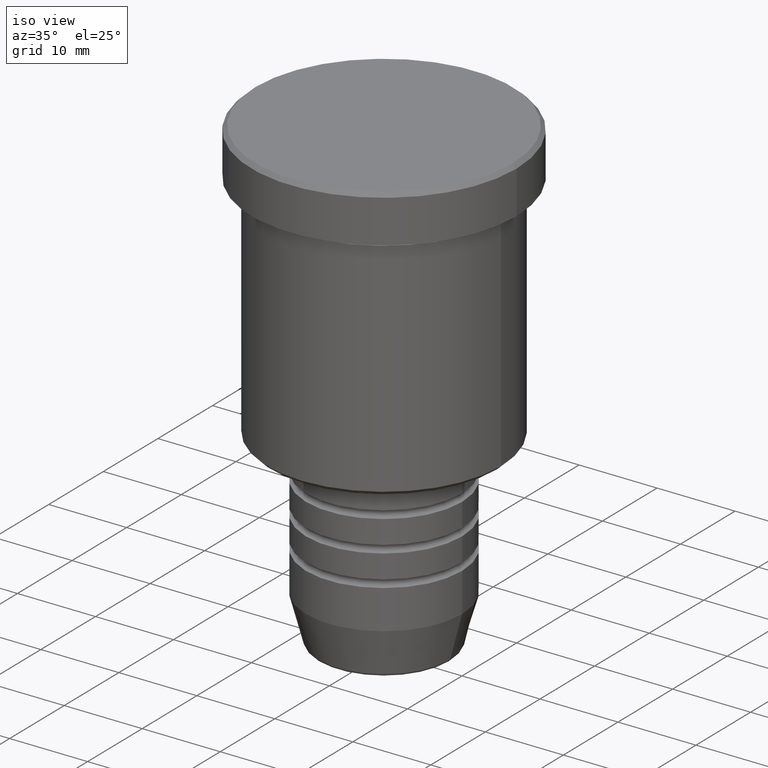
[diagram: clean part render]
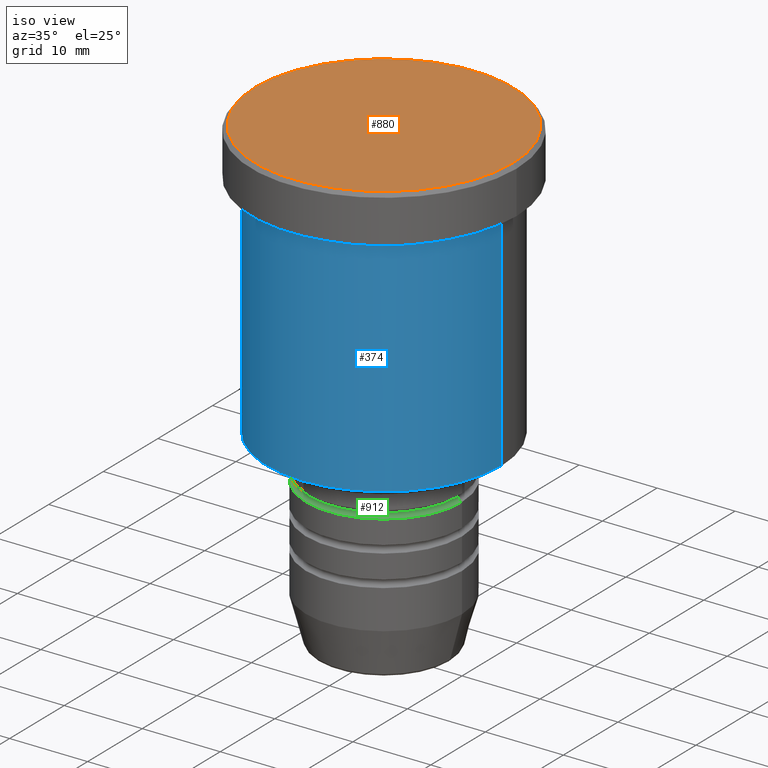
[diagram: same view with three faces highlighted in distinct colors, each labeled with its STEP entity id]
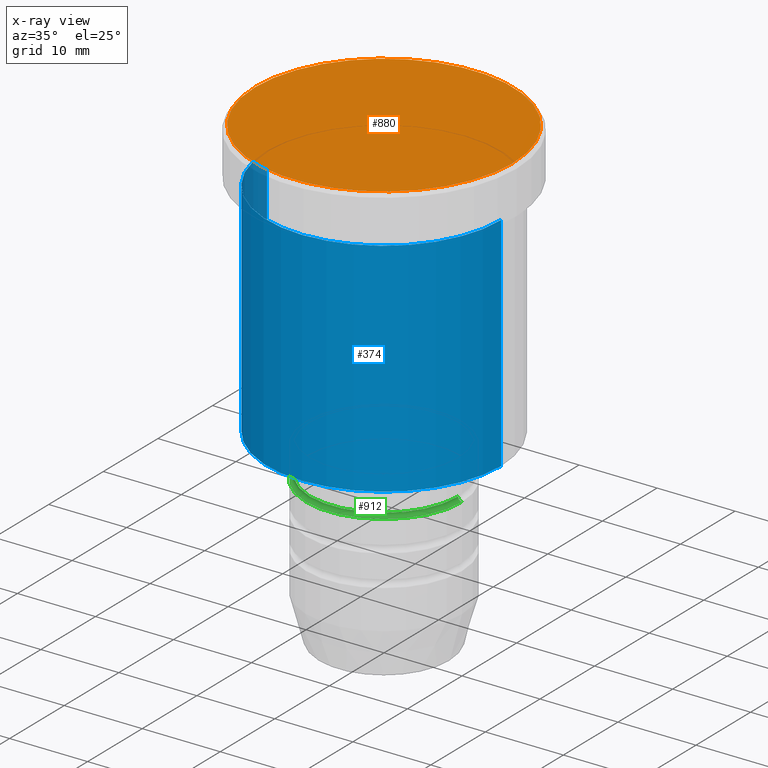
[diagram: x-ray of the same camera — body ghosted, the three highlighted faces saturated]
A machine part, iso view with three faces highlighted in distinct colors.
The next image is the same camera in x-ray (body ghosted, the three faces saturated) — at least one of them is partly hidden behind the body in this view.
Their STEP definitions:

[orange] entity #880 — the highlighted planar face has unit normal (0, -0, 1).
#28 = DIRECTION ( 'NONE',  ( 1.000000000000000000, 0.000000000000000000, 0.000000000000000000 ) ) ;
#29 = ORIENTED_EDGE ( 'NONE', *, *, #94, .T. ) ;
#94 = EDGE_CURVE ( 'NONE', #1023, #498, #1138, .T. ) ;
#151 = CARTESIAN_POINT ( 'NONE',  ( -16.50000000000000000, 0.000000000000000000, 0.000000000000000000 ) ) ;
#157 = ORIENTED_EDGE ( 'NONE', *, *, #1113, .T. ) ;
#160 = AXIS2_PLACEMENT_3D ( 'NONE', #895, #423, #801 ) ;
#216 = CARTESIAN_POINT ( 'NONE',  ( 0.000000000000000000, 0.000000000000000000, 0.000000000000000000 ) ) ;
#268 = CARTESIAN_POINT ( 'NONE',  ( 16.50000000000000000, 2.051283388571816887E-15, 0.000000000000000000 ) ) ;
#423 = DIRECTION ( 'NONE',  ( -0.000000000000000000, -0.000000000000000000, 1.000000000000000000 ) ) ;
#498 = VERTEX_POINT ( 'NONE', #151 ) ;
#550 = EDGE_LOOP ( 'NONE', ( #157, #29 ) ) ;
#605 = DIRECTION ( 'NONE',  ( -0.000000000000000000, -0.000000000000000000, 1.000000000000000000 ) ) ;
#675 = AXIS2_PLACEMENT_3D ( 'NONE', #693, #605, #698 ) ;
#693 = CARTESIAN_POINT ( 'NONE',  ( 0.000000000000000000, 0.000000000000000000, 0.000000000000000000 ) ) ;
#698 = DIRECTION ( 'NONE',  ( 1.000000000000000000, 0.000000000000000000, 0.000000000000000000 ) ) ;
#754 = AXIS2_PLACEMENT_3D ( 'NONE', #216, #1125, #28 ) ;
#775 = FACE_OUTER_BOUND ( 'NONE', #550, .T. ) ;
#801 = DIRECTION ( 'NONE',  ( 1.000000000000000000, 0.000000000000000000, 0.000000000000000000 ) ) ;
#859 = PLANE ( 'NONE',  #754 ) ;
#880 = ADVANCED_FACE ( 'NONE', ( #775 ), #859, .T. ) ;
#895 = CARTESIAN_POINT ( 'NONE',  ( 0.000000000000000000, 0.000000000000000000, 0.000000000000000000 ) ) ;
#961 = CIRCLE ( 'NONE', #160, 16.50000000000000000 ) ;
#1023 = VERTEX_POINT ( 'NONE', #268 ) ;
#1113 = EDGE_CURVE ( 'NONE', #498, #1023, #961, .T. ) ;
#1125 = DIRECTION ( 'NONE',  ( 0.000000000000000000, -0.000000000000000000, 1.000000000000000000 ) ) ;
#1138 = CIRCLE ( 'NONE', #675, 16.50000000000000000 ) ;

[blue] entity #374 — the highlighted cylindrical surface (partial cylindrical patch) has radius 15 mm, axis along (-0, -0, 1).
#5 = VERTEX_POINT ( 'NONE', #1098 ) ;
#7 = CARTESIAN_POINT ( 'NONE',  ( 0.000000000000000000, 0.000000000000000000, 0.000000000000000000 ) ) ;
#8 = EDGE_LOOP ( 'NONE', ( #397, #66, #753, #780 ) ) ;
#66 = ORIENTED_EDGE ( 'NONE', *, *, #293, .T. ) ;
#73 = LINE ( 'NONE', #864, #943 ) ;
#107 = VERTEX_POINT ( 'NONE', #1065 ) ;
#139 = AXIS2_PLACEMENT_3D ( 'NONE', #648, #621, #167 ) ;
#167 = DIRECTION ( 'NONE',  ( -1.000000000000000000, 0.000000000000000000, 0.000000000000000000 ) ) ;
#169 = CARTESIAN_POINT ( 'NONE',  ( 0.000000000000000000, 0.000000000000000000, -6.999999999999995559 ) ) ;
#250 = CARTESIAN_POINT ( 'NONE',  ( 15.00000000000000000, 0.000000000000000000, -6.999999999999995559 ) ) ;
#271 = DIRECTION ( 'NONE',  ( 1.000000000000000000, 0.000000000000000000, 0.000000000000000000 ) ) ;
#293 = EDGE_CURVE ( 'NONE', #571, #5, #1176, .T. ) ;
#312 = VERTEX_POINT ( 'NONE', #250 ) ;
#346 = VECTOR ( 'NONE', #364, 1000.000000000000000 ) ;
#364 = DIRECTION ( 'NONE',  ( -0.000000000000000000, -0.000000000000000000, 1.000000000000000000 ) ) ;
#374 = ADVANCED_FACE ( 'NONE', ( #1013 ), #958, .T. ) ;
#397 = ORIENTED_EDGE ( 'NONE', *, *, #709, .F. ) ;
#407 = AXIS2_PLACEMENT_3D ( 'NONE', #7, #835, #271 ) ;
#438 = LINE ( 'NONE', #824, #346 ) ;
#543 = DIRECTION ( 'NONE',  ( -0.000000000000000000, -0.000000000000000000, 1.000000000000000000 ) ) ;
#571 = VERTEX_POINT ( 'NONE', #896 ) ;
#621 = DIRECTION ( 'NONE',  ( -0.000000000000000000, -0.000000000000000000, 1.000000000000000000 ) ) ;
#648 = CARTESIAN_POINT ( 'NONE',  ( 0.000000000000000000, 0.000000000000000000, -35.49999999999999289 ) ) ;
#709 = EDGE_CURVE ( 'NONE', #571, #107, #438, .T. ) ;
#753 = ORIENTED_EDGE ( 'NONE', *, *, #782, .T. ) ;
#780 = ORIENTED_EDGE ( 'NONE', *, *, #1005, .F. ) ;
#782 = EDGE_CURVE ( 'NONE', #5, #312, #73, .T. ) ;
#824 = CARTESIAN_POINT ( 'NONE',  ( -15.00000000000000000, 1.836970198721029589E-15, 0.000000000000000000 ) ) ;
#835 = DIRECTION ( 'NONE',  ( -0.000000000000000000, -0.000000000000000000, 1.000000000000000000 ) ) ;
#853 = DIRECTION ( 'NONE',  ( -0.000000000000000000, -0.000000000000000000, 1.000000000000000000 ) ) ;
#864 = CARTESIAN_POINT ( 'NONE',  ( 15.00000000000000000, 0.000000000000000000, 0.000000000000000000 ) ) ;
#869 = CIRCLE ( 'NONE', #960, 15.00000000000000000 ) ;
#896 = CARTESIAN_POINT ( 'NONE',  ( -15.00000000000000000, 1.836970198721029589E-15, -35.49999999999999289 ) ) ;
#915 = DIRECTION ( 'NONE',  ( 1.000000000000000000, 0.000000000000000000, 0.000000000000000000 ) ) ;
#943 = VECTOR ( 'NONE', #853, 1000.000000000000000 ) ;
#958 = CYLINDRICAL_SURFACE ( 'NONE', #407, 15.00000000000000000 ) ;
#960 = AXIS2_PLACEMENT_3D ( 'NONE', #169, #543, #915 ) ;
#1005 = EDGE_CURVE ( 'NONE', #107, #312, #869, .T. ) ;
#1013 = FACE_OUTER_BOUND ( 'NONE', #8, .T. ) ;
#1065 = CARTESIAN_POINT ( 'NONE',  ( -15.00000000000000000, 1.836970198721029589E-15, -6.999999999999995559 ) ) ;
#1098 = CARTESIAN_POINT ( 'NONE',  ( 15.00000000000000000, 0.000000000000000000, -35.49999999999999289 ) ) ;
#1176 = CIRCLE ( 'NONE', #139, 15.00000000000000000 ) ;

[green] entity #912 — the highlighted toroidal blend (fillet) surface has major radius 10 mm and minor (blend) radius 0.5 mm.
#35 = CIRCLE ( 'NONE', #1161, 0.5000000000000004441 ) ;
#83 = TOROIDAL_SURFACE ( 'NONE', #1017, 10.00000000000000355, 0.5000000000000000000 ) ;
#96 = FACE_OUTER_BOUND ( 'NONE', #820, .T. ) ;
#108 = DIRECTION ( 'NONE',  ( -1.000000000000000000, 1.224646799147353454E-16, 0.000000000000000000 ) ) ;
#110 = EDGE_CURVE ( 'NONE', #1115, #607, #827, .T. ) ;
#117 = DIRECTION ( 'NONE',  ( -0.000000000000000000, -0.000000000000000000, 1.000000000000000000 ) ) ;
#177 = CARTESIAN_POINT ( 'NONE',  ( 10.00000000000000355, 0.000000000000000000, -40.49999999999999289 ) ) ;
#186 = DIRECTION ( 'NONE',  ( 1.000000000000000000, 0.000000000000000000, 0.000000000000000000 ) ) ;
#252 = VERTEX_POINT ( 'NONE', #902 ) ;
#262 = DIRECTION ( 'NONE',  ( 0.000000000000000000, -1.000000000000000000, 0.000000000000000000 ) ) ;
#265 = ORIENTED_EDGE ( 'NONE', *, *, #110, .T. ) ;
#279 = CIRCLE ( 'NONE', #349, 9.500000000000003553 ) ;
#305 = CARTESIAN_POINT ( 'NONE',  ( 0.000000000000000000, 0.000000000000000000, -40.99999999999999289 ) ) ;
#349 = AXIS2_PLACEMENT_3D ( 'NONE', #538, #910, #186 ) ;
#421 = DIRECTION ( 'NONE',  ( 1.000000000000000000, 0.000000000000000000, 0.000000000000000000 ) ) ;
#440 = ORIENTED_EDGE ( 'NONE', *, *, #963, .F. ) ;
#450 = AXIS2_PLACEMENT_3D ( 'NONE', #305, #117, #1057 ) ;
#488 = VERTEX_POINT ( 'NONE', #702 ) ;
#538 = CARTESIAN_POINT ( 'NONE',  ( 0.000000000000000000, 0.000000000000000000, -40.49999999999999289 ) ) ;
#604 = ORIENTED_EDGE ( 'NONE', *, *, #984, .F. ) ;
#607 = VERTEX_POINT ( 'NONE', #970 ) ;
#613 = AXIS2_PLACEMENT_3D ( 'NONE', #947, #1029, #108 ) ;
#660 = CIRCLE ( 'NONE', #613, 0.5000000000000004441 ) ;
#702 = CARTESIAN_POINT ( 'NONE',  ( -9.500000000000003553, 1.194030629168669469E-15, -40.49999999999999289 ) ) ;
#820 = EDGE_LOOP ( 'NONE', ( #604, #1052, #265, #440 ) ) ;
#827 = CIRCLE ( 'NONE', #450, 10.00000000000000000 ) ;
#860 = EDGE_CURVE ( 'NONE', #488, #1115, #660, .T. ) ;
#902 = CARTESIAN_POINT ( 'NONE',  ( 9.500000000000003553, 0.000000000000000000, -40.49999999999999289 ) ) ;
#910 = DIRECTION ( 'NONE',  ( -0.000000000000000000, -0.000000000000000000, 1.000000000000000000 ) ) ;
#912 = ADVANCED_FACE ( 'NONE', ( #96 ), #83, .F. ) ;
#947 = CARTESIAN_POINT ( 'NONE',  ( -10.00000000000000355, 1.224646799147353651E-15, -40.49999999999999289 ) ) ;
#963 = EDGE_CURVE ( 'NONE', #252, #607, #35, .T. ) ;
#964 = CARTESIAN_POINT ( 'NONE',  ( 0.000000000000000000, 0.000000000000000000, -40.49999999999999289 ) ) ;
#970 = CARTESIAN_POINT ( 'NONE',  ( 10.00000000000000000, 0.000000000000000000, -40.99999999999999289 ) ) ;
#984 = EDGE_CURVE ( 'NONE', #488, #252, #279, .T. ) ;
#1017 = AXIS2_PLACEMENT_3D ( 'NONE', #964, #1131, #421 ) ;
#1029 = DIRECTION ( 'NONE',  ( 1.224646799147353207E-16, 1.000000000000000000, 0.000000000000000000 ) ) ;
#1052 = ORIENTED_EDGE ( 'NONE', *, *, #860, .T. ) ;
#1057 = DIRECTION ( 'NONE',  ( 1.000000000000000000, 0.000000000000000000, 0.000000000000000000 ) ) ;
#1079 = DIRECTION ( 'NONE',  ( 0.000000000000000000, 0.000000000000000000, -1.000000000000000000 ) ) ;
#1115 = VERTEX_POINT ( 'NONE', #1154 ) ;
#1131 = DIRECTION ( 'NONE',  ( -0.000000000000000000, -0.000000000000000000, 1.000000000000000000 ) ) ;
#1154 = CARTESIAN_POINT ( 'NONE',  ( -10.00000000000000000, 1.224646799147353256E-15, -40.99999999999999289 ) ) ;
#1161 = AXIS2_PLACEMENT_3D ( 'NONE', #177, #262, #1079 ) ;